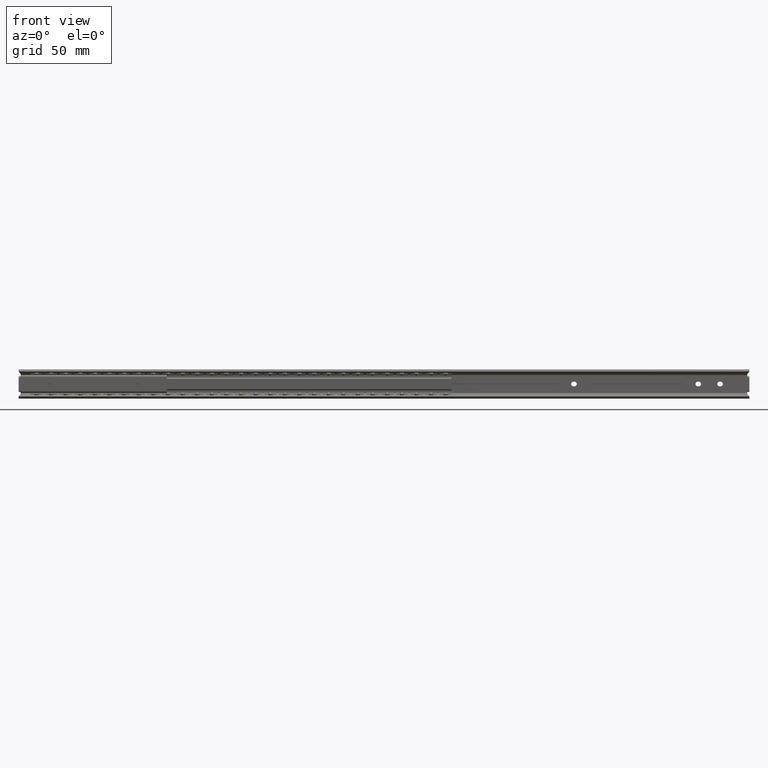
[diagram: clean part render]
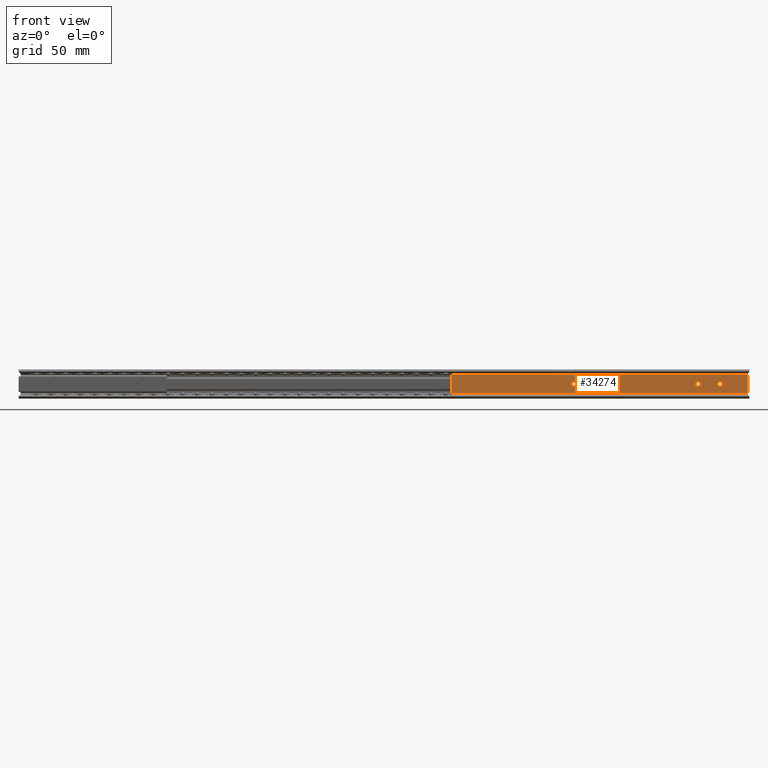
[diagram: same view with one face highlighted and labeled with its STEP entity id]
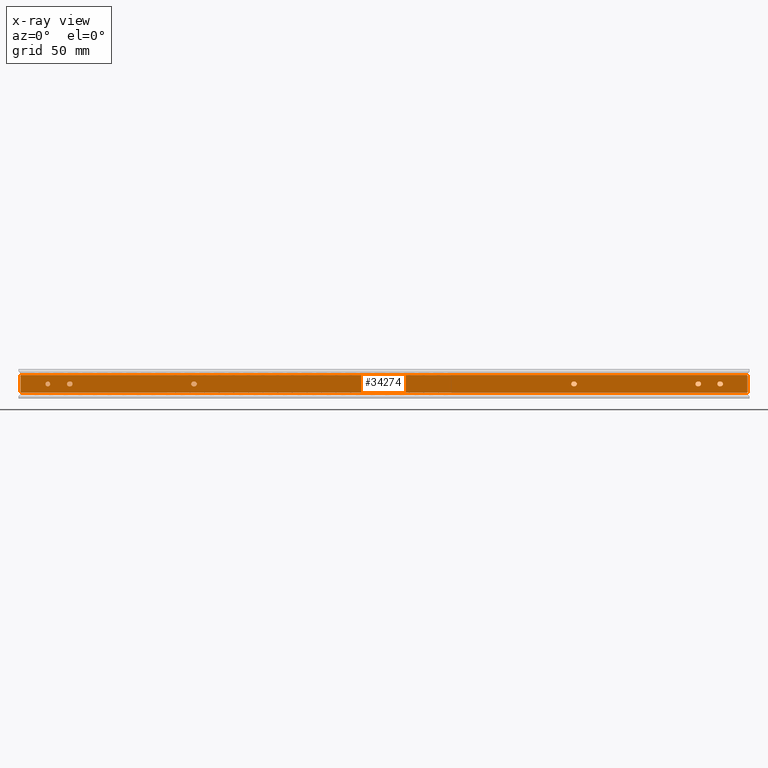
[diagram: x-ray of the same camera — body ghosted, the highlighted face saturated]
A machine part, front view. The second image highlights one B-rep face of the part: STEP entity #34274.
The next image is the same camera in x-ray: the body ghosted, the highlighted face saturated — about 0% of this face is hidden behind the body in this view.
In plain terms, the highlighted face is a freeform B-spline surface patch.
Its self-contained STEP definition (entity closure, byte-faithful):
#30622=CARTESIAN_POINT('',(21.588815240927872,-1.399999999999956,-0.188854786000551));
#30623=VERTEX_POINT('',#30622);
#30629=CARTESIAN_POINT('',(20.0,-1.399999999999956,1.600000000000000));
#30630=VERTEX_POINT('',#30629);
#30631=CARTESIAN_POINT('',(21.588815240927875,-1.399999999999957,-0.188854786000551));
#30632=CARTESIAN_POINT('',(21.600000000000005,-1.399999999999956,-0.094758602104324));
#30633=CARTESIAN_POINT('',(21.600000000000001,-1.399999999999956,0.0));
#30634=CARTESIAN_POINT('',(21.600000000000005,-1.399999999999956,1.600000000000000));
#30635=CARTESIAN_POINT('',(20.0,-1.399999999999956,1.600000000000000));
#30643=(BOUNDED_CURVE()B_SPLINE_CURVE(2,(#30631,#30632,#30633,#30634,#30635),.UNSPECIFIED.,.F.,.U.)B_SPLINE_CURVE_WITH_KNOTS((3,2,3),(0.229562471271280,0.250000000000000,0.500000000000000),.UNSPECIFIED.)CURVE()GEOMETRIC_REPRESENTATION_ITEM()RATIONAL_B_SPLINE_CURVE((0.956026749788840,0.976055945704211,1.0,0.707106781186548,1.0))REPRESENTATION_ITEM(''));
#30644=EDGE_CURVE('',#30623,#30630,#30643,.T.);
#30646=CARTESIAN_POINT('',(18.402984322537680,-1.399999999999956,0.097677663462970));
#30647=VERTEX_POINT('',#30646);
#30648=CARTESIAN_POINT('',(20.0,-1.399999999999956,1.600000000000000));
#30649=CARTESIAN_POINT('',(18.494870293342164,-1.399999999999955,1.600000000000000));
#30650=CARTESIAN_POINT('',(18.402984322537691,-1.399999999999957,0.097677663462970));
#30658=(BOUNDED_CURVE()B_SPLINE_CURVE(2,(#30648,#30649,#30650),.UNSPECIFIED.,.F.,.U.)B_SPLINE_CURVE_WITH_KNOTS((3,3),(0.500000000000000,0.739332962197196),.UNSPECIFIED.)CURVE()GEOMETRIC_REPRESENTATION_ITEM()RATIONAL_B_SPLINE_CURVE((1.0,0.719603993335619,0.976072041577247))REPRESENTATION_ITEM(''));
#30659=EDGE_CURVE('',#30630,#30647,#30658,.T.);
#30733=CARTESIAN_POINT('',(20.0,-1.399999999999956,-1.600000000000000));
#30734=VERTEX_POINT('',#30733);
#30735=CARTESIAN_POINT('',(18.402984322537680,-1.399999999999956,0.097677663462970));
#30736=CARTESIAN_POINT('',(18.399999999999999,-1.399999999999956,0.048884421485522));
#30737=CARTESIAN_POINT('',(18.399999999999999,-1.399999999999956,0.0));
#30738=CARTESIAN_POINT('',(18.399999999999991,-1.399999999999956,-1.600000000000000));
#30739=CARTESIAN_POINT('',(20.0,-1.399999999999956,-1.600000000000000));
#30747=(BOUNDED_CURVE()B_SPLINE_CURVE(2,(#30735,#30736,#30737,#30738,#30739),.UNSPECIFIED.,.F.,.U.)B_SPLINE_CURVE_WITH_KNOTS((3,2,3),(0.739332962197195,0.750000000000000,1.0),.UNSPECIFIED.)CURVE()GEOMETRIC_REPRESENTATION_ITEM()RATIONAL_B_SPLINE_CURVE((0.976072041577245,0.987502787850927,1.0,0.707106781186548,1.0))REPRESENTATION_ITEM(''));
#30748=EDGE_CURVE('',#30647,#30734,#30747,.T.);
#30750=CARTESIAN_POINT('',(20.0,-1.399999999999956,-1.600000000000000));
#30751=CARTESIAN_POINT('',(21.421079222517402,-1.399999999999956,-1.600000000000000));
#30752=CARTESIAN_POINT('',(21.588815240927875,-1.399999999999957,-0.188854786000551));
#30760=(BOUNDED_CURVE()B_SPLINE_CURVE(2,(#30750,#30751,#30752),.UNSPECIFIED.,.F.,.U.)B_SPLINE_CURVE_WITH_KNOTS((3,3),(0.0,0.229562471271280),.UNSPECIFIED.)CURVE()GEOMETRIC_REPRESENTATION_ITEM()RATIONAL_B_SPLINE_CURVE((1.0,0.731050835482336,0.956026749788840))REPRESENTATION_ITEM(''));
#30761=EDGE_CURVE('',#30734,#30623,#30760,.T.);
#30772=CARTESIAN_POINT('',(479.699999999999990,-1.399999999999920,-1.600000000000000));
#30773=VERTEX_POINT('',#30772);
#30774=CARTESIAN_POINT('',(480.300000000000010,-1.399999999999956,-1.600000000000000));
#30775=VERTEX_POINT('',#30774);
#30776=CARTESIAN_POINT('',(479.699999999999990,-1.399999999999920,-1.600000000000000));
#30777=CARTESIAN_POINT('',(480.300000000000010,-1.399999999999956,-1.600000000000000));
#30778=QUASI_UNIFORM_CURVE('',1,(#30776,#30777),.UNSPECIFIED.,.F.,.U.);
#30779=EDGE_CURVE('',#30773,#30775,#30778,.T.);
#30821=CARTESIAN_POINT('',(479.699999999999990,-1.399999999999956,1.599999999999795));
#30822=VERTEX_POINT('',#30821);
#30823=CARTESIAN_POINT('',(479.699999999999990,-1.399999999999956,1.600000000000025));
#30824=CARTESIAN_POINT('',(478.099999999999970,-1.399999999999956,1.600000000000026));
#30825=CARTESIAN_POINT('',(478.100000000000020,-1.399999999999956,0.0));
#30826=CARTESIAN_POINT('',(478.099999999999970,-1.399999999999956,-1.600000000000026));
#30827=CARTESIAN_POINT('',(479.699999999999990,-1.399999999999956,-1.600000000000025));
#30835=(BOUNDED_CURVE()B_SPLINE_CURVE(2,(#30823,#30824,#30825,#30826,#30827),.UNSPECIFIED.,.F.,.U.)B_SPLINE_CURVE_WITH_KNOTS((3,2,3),(0.0,0.500000000000000,1.0),.UNSPECIFIED.)CURVE()GEOMETRIC_REPRESENTATION_ITEM()RATIONAL_B_SPLINE_CURVE((1.0,0.707106781186547,1.0,0.707106781186547,1.0))REPRESENTATION_ITEM(''));
#30836=EDGE_CURVE('',#30822,#30773,#30835,.T.);
#30869=CARTESIAN_POINT('',(480.300000000000010,-1.399999999999956,1.599999999999795));
#30870=VERTEX_POINT('',#30869);
#30871=CARTESIAN_POINT('',(480.300000000000010,-1.399999999999956,1.599999999999795));
#30872=CARTESIAN_POINT('',(479.699999999999990,-1.399999999999956,1.599999999999795));
#30873=QUASI_UNIFORM_CURVE('',1,(#30871,#30872),.UNSPECIFIED.,.F.,.U.);
#30874=EDGE_CURVE('',#30870,#30822,#30873,.T.);
#30910=CARTESIAN_POINT('',(480.300000000000010,-1.399999999999956,-1.600000000000025));
#30911=CARTESIAN_POINT('',(481.899999999999920,-1.399999999999956,-1.600000000000026));
#30912=CARTESIAN_POINT('',(481.899999999999980,-1.399999999999956,0.0));
#30913=CARTESIAN_POINT('',(481.899999999999920,-1.399999999999956,1.600000000000026));
#30914=CARTESIAN_POINT('',(480.300000000000010,-1.399999999999956,1.600000000000025));
#30922=(BOUNDED_CURVE()B_SPLINE_CURVE(2,(#30910,#30911,#30912,#30913,#30914),.UNSPECIFIED.,.F.,.U.)B_SPLINE_CURVE_WITH_KNOTS((3,2,3),(0.0,0.500000000000000,1.0),.UNSPECIFIED.)CURVE()GEOMETRIC_REPRESENTATION_ITEM()RATIONAL_B_SPLINE_CURVE((1.0,0.707106781186547,1.0,0.707106781186547,1.0))REPRESENTATION_ITEM(''));
#30923=EDGE_CURVE('',#30775,#30870,#30922,.T.);
#30950=CARTESIAN_POINT('',(464.699999999999990,-1.399999999999920,-1.600000000000000));
#30951=VERTEX_POINT('',#30950);
#30952=CARTESIAN_POINT('',(465.300000000000010,-1.399999999999956,-1.600000000000000));
#30953=VERTEX_POINT('',#30952);
#30954=CARTESIAN_POINT('',(464.699999999999990,-1.399999999999920,-1.600000000000000));
#30955=CARTESIAN_POINT('',(465.300000000000010,-1.399999999999956,-1.600000000000000));
#30956=QUASI_UNIFORM_CURVE('',1,(#30954,#30955),.UNSPECIFIED.,.F.,.U.);
#30957=EDGE_CURVE('',#30951,#30953,#30956,.T.);
#30999=CARTESIAN_POINT('',(464.699999999999990,-1.399999999999956,1.599999999999795));
#31000=VERTEX_POINT('',#30999);
#31001=CARTESIAN_POINT('',(464.699999999999990,-1.399999999999956,1.600000000000025));
#31002=CARTESIAN_POINT('',(463.099999999999970,-1.399999999999956,1.600000000000026));
#31003=CARTESIAN_POINT('',(463.100000000000020,-1.399999999999956,0.0));
#31004=CARTESIAN_POINT('',(463.099999999999970,-1.399999999999956,-1.600000000000026));
#31005=CARTESIAN_POINT('',(464.699999999999990,-1.399999999999956,-1.600000000000025));
#31013=(BOUNDED_CURVE()B_SPLINE_CURVE(2,(#31001,#31002,#31003,#31004,#31005),.UNSPECIFIED.,.F.,.U.)B_SPLINE_CURVE_WITH_KNOTS((3,2,3),(0.0,0.500000000000000,1.0),.UNSPECIFIED.)CURVE()GEOMETRIC_REPRESENTATION_ITEM()RATIONAL_B_SPLINE_CURVE((1.0,0.707106781186547,1.0,0.707106781186547,1.0))REPRESENTATION_ITEM(''));
#31014=EDGE_CURVE('',#31000,#30951,#31013,.T.);
#31047=CARTESIAN_POINT('',(465.300000000000010,-1.399999999999956,1.599999999999795));
#31048=VERTEX_POINT('',#31047);
#31049=CARTESIAN_POINT('',(465.300000000000010,-1.399999999999956,1.599999999999795));
#31050=CARTESIAN_POINT('',(464.699999999999990,-1.399999999999956,1.599999999999795));
#31051=QUASI_UNIFORM_CURVE('',1,(#31049,#31050),.UNSPECIFIED.,.F.,.U.);
#31052=EDGE_CURVE('',#31048,#31000,#31051,.T.);
#31088=CARTESIAN_POINT('',(465.300000000000010,-1.399999999999956,-1.600000000000025));
#31089=CARTESIAN_POINT('',(466.899999999999980,-1.399999999999956,-1.600000000000026));
#31090=CARTESIAN_POINT('',(466.899999999999980,-1.399999999999956,0.0));
#31091=CARTESIAN_POINT('',(466.899999999999980,-1.399999999999956,1.600000000000026));
#31092=CARTESIAN_POINT('',(465.300000000000010,-1.399999999999956,1.600000000000025));
#31100=(BOUNDED_CURVE()B_SPLINE_CURVE(2,(#31088,#31089,#31090,#31091,#31092),.UNSPECIFIED.,.F.,.U.)B_SPLINE_CURVE_WITH_KNOTS((3,2,3),(0.0,0.500000000000000,1.0),.UNSPECIFIED.)CURVE()GEOMETRIC_REPRESENTATION_ITEM()RATIONAL_B_SPLINE_CURVE((1.0,0.707106781186547,1.0,0.707106781186547,1.0))REPRESENTATION_ITEM(''));
#31101=EDGE_CURVE('',#30953,#31048,#31100,.T.);
#31128=CARTESIAN_POINT('',(379.699999999999990,-1.399999999999920,-1.600000000000000));
#31129=VERTEX_POINT('',#31128);
#31130=CARTESIAN_POINT('',(380.300000000000010,-1.399999999999956,-1.600000000000000));
#31131=VERTEX_POINT('',#31130);
#31132=CARTESIAN_POINT('',(379.699999999999990,-1.399999999999920,-1.600000000000000));
#31133=CARTESIAN_POINT('',(380.300000000000010,-1.399999999999956,-1.600000000000000));
#31134=QUASI_UNIFORM_CURVE('',1,(#31132,#31133),.UNSPECIFIED.,.F.,.U.);
#31135=EDGE_CURVE('',#31129,#31131,#31134,.T.);
#31177=CARTESIAN_POINT('',(379.699999999999990,-1.399999999999956,1.599999999999795));
#31178=VERTEX_POINT('',#31177);
#31179=CARTESIAN_POINT('',(379.699999999999990,-1.399999999999956,1.600000000000025));
#31180=CARTESIAN_POINT('',(378.100000000000020,-1.399999999999956,1.600000000000026));
#31181=CARTESIAN_POINT('',(378.099999999999910,-1.399999999999956,0.0));
#31182=CARTESIAN_POINT('',(378.100000000000020,-1.399999999999956,-1.600000000000026));
#31183=CARTESIAN_POINT('',(379.699999999999990,-1.399999999999956,-1.600000000000025));
#31191=(BOUNDED_CURVE()B_SPLINE_CURVE(2,(#31179,#31180,#31181,#31182,#31183),.UNSPECIFIED.,.F.,.U.)B_SPLINE_CURVE_WITH_KNOTS((3,2,3),(0.0,0.500000000000000,1.0),.UNSPECIFIED.)CURVE()GEOMETRIC_REPRESENTATION_ITEM()RATIONAL_B_SPLINE_CURVE((1.0,0.707106781186547,1.0,0.707106781186547,1.0))REPRESENTATION_ITEM(''));
#31192=EDGE_CURVE('',#31178,#31129,#31191,.T.);
#31225=CARTESIAN_POINT('',(380.300000000000010,-1.399999999999956,1.599999999999795));
#31226=VERTEX_POINT('',#31225);
#31227=CARTESIAN_POINT('',(380.300000000000010,-1.399999999999956,1.599999999999795));
#31228=CARTESIAN_POINT('',(379.699999999999990,-1.399999999999956,1.599999999999795));
#31229=QUASI_UNIFORM_CURVE('',1,(#31227,#31228),.UNSPECIFIED.,.F.,.U.);
#31230=EDGE_CURVE('',#31226,#31178,#31229,.T.);
#31266=CARTESIAN_POINT('',(380.300000000000010,-1.399999999999956,-1.600000000000025));
#31267=CARTESIAN_POINT('',(381.900000000000150,-1.399999999999956,-1.600000000000026));
#31268=CARTESIAN_POINT('',(381.900000000000090,-1.399999999999956,0.0));
#31269=CARTESIAN_POINT('',(381.900000000000150,-1.399999999999956,1.600000000000026));
#31270=CARTESIAN_POINT('',(380.300000000000010,-1.399999999999956,1.600000000000025));
#31278=(BOUNDED_CURVE()B_SPLINE_CURVE(2,(#31266,#31267,#31268,#31269,#31270),.UNSPECIFIED.,.F.,.U.)B_SPLINE_CURVE_WITH_KNOTS((3,2,3),(0.0,0.500000000000000,1.0),.UNSPECIFIED.)CURVE()GEOMETRIC_REPRESENTATION_ITEM()RATIONAL_B_SPLINE_CURVE((1.0,0.707106781186547,1.0,0.707106781186547,1.0))REPRESENTATION_ITEM(''));
#31279=EDGE_CURVE('',#31131,#31226,#31278,.T.);
#31306=CARTESIAN_POINT('',(249.699999999999990,-1.399999999999920,-1.600000000000080));
#31307=VERTEX_POINT('',#31306);
#31308=CARTESIAN_POINT('',(250.300000000000010,-1.399999999999956,-1.600000000000080));
#31309=VERTEX_POINT('',#31308);
#31310=CARTESIAN_POINT('',(249.699999999999990,-1.399999999999920,-1.600000000000080));
#31311=CARTESIAN_POINT('',(250.300000000000010,-1.399999999999956,-1.600000000000080));
#31312=QUASI_UNIFORM_CURVE('',1,(#31310,#31311),.UNSPECIFIED.,.F.,.U.);
#31313=EDGE_CURVE('',#31307,#31309,#31312,.T.);
#31355=CARTESIAN_POINT('',(249.699999999999990,-1.399999999999956,1.600000000000025));
#31356=VERTEX_POINT('',#31355);
#31357=CARTESIAN_POINT('',(249.699999999999990,-1.399999999999956,1.600000000000000));
#31358=CARTESIAN_POINT('',(248.100000000000080,-1.399999999999956,1.600000000000000));
#31359=CARTESIAN_POINT('',(248.099999999999990,-1.399999999999956,0.0));
#31360=CARTESIAN_POINT('',(248.100000000000080,-1.399999999999956,-1.600000000000000));
#31361=CARTESIAN_POINT('',(249.699999999999990,-1.399999999999956,-1.600000000000000));
#31369=(BOUNDED_CURVE()B_SPLINE_CURVE(2,(#31357,#31358,#31359,#31360,#31361),.UNSPECIFIED.,.F.,.U.)B_SPLINE_CURVE_WITH_KNOTS((3,2,3),(0.0,0.500000000000000,1.0),.UNSPECIFIED.)CURVE()GEOMETRIC_REPRESENTATION_ITEM()RATIONAL_B_SPLINE_CURVE((1.0,0.707106781186548,1.0,0.707106781186548,1.0))REPRESENTATION_ITEM(''));
#31370=EDGE_CURVE('',#31356,#31307,#31369,.T.);
#31403=CARTESIAN_POINT('',(250.300000000000010,-1.399999999999956,1.600000000000025));
#31404=VERTEX_POINT('',#31403);
#31405=CARTESIAN_POINT('',(250.300000000000010,-1.399999999999956,1.600000000000025));
#31406=CARTESIAN_POINT('',(249.699999999999990,-1.399999999999956,1.600000000000025));
#31407=QUASI_UNIFORM_CURVE('',1,(#31405,#31406),.UNSPECIFIED.,.F.,.U.);
#31408=EDGE_CURVE('',#31404,#31356,#31407,.T.);
#31444=CARTESIAN_POINT('',(250.300000000000010,-1.399999999999956,-1.600000000000000));
#31445=CARTESIAN_POINT('',(251.900000000000090,-1.399999999999956,-1.600000000000000));
#31446=CARTESIAN_POINT('',(251.900000000000010,-1.399999999999956,0.0));
#31447=CARTESIAN_POINT('',(251.900000000000090,-1.399999999999956,1.600000000000000));
#31448=CARTESIAN_POINT('',(250.300000000000010,-1.399999999999956,1.600000000000000));
#31456=(BOUNDED_CURVE()B_SPLINE_CURVE(2,(#31444,#31445,#31446,#31447,#31448),.UNSPECIFIED.,.F.,.U.)B_SPLINE_CURVE_WITH_KNOTS((3,2,3),(0.0,0.500000000000000,1.0),.UNSPECIFIED.)CURVE()GEOMETRIC_REPRESENTATION_ITEM()RATIONAL_B_SPLINE_CURVE((1.0,0.707106781186548,1.0,0.707106781186548,1.0))REPRESENTATION_ITEM(''));
#31457=EDGE_CURVE('',#31309,#31404,#31456,.T.);
#31484=CARTESIAN_POINT('',(119.700000000000000,-1.399999999999920,-1.600000000000080));
#31485=VERTEX_POINT('',#31484);
#31486=CARTESIAN_POINT('',(120.300000000000000,-1.399999999999956,-1.600000000000080));
#31487=VERTEX_POINT('',#31486);
#31488=CARTESIAN_POINT('',(119.700000000000000,-1.399999999999920,-1.600000000000080));
#31489=CARTESIAN_POINT('',(120.300000000000000,-1.399999999999956,-1.600000000000080));
#31490=QUASI_UNIFORM_CURVE('',1,(#31488,#31489),.UNSPECIFIED.,.F.,.U.);
#31491=EDGE_CURVE('',#31485,#31487,#31490,.T.);
#31533=CARTESIAN_POINT('',(119.700000000000000,-1.399999999999956,1.600000000000025));
#31534=VERTEX_POINT('',#31533);
#31535=CARTESIAN_POINT('',(119.700000000000000,-1.399999999999956,1.600000000000000));
#31536=CARTESIAN_POINT('',(118.099999999999980,-1.399999999999956,1.600000000000000));
#31537=CARTESIAN_POINT('',(118.099999999999990,-1.399999999999956,0.0));
#31538=CARTESIAN_POINT('',(118.099999999999980,-1.399999999999956,-1.600000000000000));
#31539=CARTESIAN_POINT('',(119.700000000000000,-1.399999999999956,-1.600000000000000));
#31547=(BOUNDED_CURVE()B_SPLINE_CURVE(2,(#31535,#31536,#31537,#31538,#31539),.UNSPECIFIED.,.F.,.U.)B_SPLINE_CURVE_WITH_KNOTS((3,2,3),(0.0,0.500000000000000,1.0),.UNSPECIFIED.)CURVE()GEOMETRIC_REPRESENTATION_ITEM()RATIONAL_B_SPLINE_CURVE((1.0,0.707106781186548,1.0,0.707106781186548,1.0))REPRESENTATION_ITEM(''));
#31548=EDGE_CURVE('',#31534,#31485,#31547,.T.);
#31581=CARTESIAN_POINT('',(120.300000000000000,-1.399999999999956,1.600000000000025));
#31582=VERTEX_POINT('',#31581);
#31583=CARTESIAN_POINT('',(120.300000000000000,-1.399999999999956,1.600000000000025));
#31584=CARTESIAN_POINT('',(119.700000000000000,-1.399999999999956,1.600000000000025));
#31585=QUASI_UNIFORM_CURVE('',1,(#31583,#31584),.UNSPECIFIED.,.F.,.U.);
#31586=EDGE_CURVE('',#31582,#31534,#31585,.T.);
#31622=CARTESIAN_POINT('',(120.300000000000000,-1.399999999999956,-1.600000000000000));
#31623=CARTESIAN_POINT('',(121.900000000000010,-1.399999999999956,-1.600000000000000));
#31624=CARTESIAN_POINT('',(121.900000000000010,-1.399999999999956,0.0));
#31625=CARTESIAN_POINT('',(121.900000000000010,-1.399999999999956,1.600000000000000));
#31626=CARTESIAN_POINT('',(120.300000000000000,-1.399999999999956,1.600000000000000));
#31634=(BOUNDED_CURVE()B_SPLINE_CURVE(2,(#31622,#31623,#31624,#31625,#31626),.UNSPECIFIED.,.F.,.U.)B_SPLINE_CURVE_WITH_KNOTS((3,2,3),(0.0,0.500000000000000,1.0),.UNSPECIFIED.)CURVE()GEOMETRIC_REPRESENTATION_ITEM()RATIONAL_B_SPLINE_CURVE((1.0,0.707106781186548,1.0,0.707106781186548,1.0))REPRESENTATION_ITEM(''));
#31635=EDGE_CURVE('',#31487,#31582,#31634,.T.);
#31675=CARTESIAN_POINT('',(35.299999999999997,-1.399999999999956,-1.600000000000000));
#31676=VERTEX_POINT('',#31675);
#31677=CARTESIAN_POINT('',(35.299999999999997,-1.399999999999956,1.600000000000025));
#31678=VERTEX_POINT('',#31677);
#31679=CARTESIAN_POINT('',(35.299999999999997,-1.399999999999956,-1.600000000000000));
#31680=CARTESIAN_POINT('',(36.900000000000006,-1.399999999999956,-1.600000000000000));
#31681=CARTESIAN_POINT('',(36.899999999999999,-1.399999999999956,0.0));
#31682=CARTESIAN_POINT('',(36.900000000000006,-1.399999999999956,1.600000000000000));
#31683=CARTESIAN_POINT('',(35.299999999999997,-1.399999999999956,1.600000000000000));
#31691=(BOUNDED_CURVE()B_SPLINE_CURVE(2,(#31679,#31680,#31681,#31682,#31683),.UNSPECIFIED.,.F.,.U.)B_SPLINE_CURVE_WITH_KNOTS((3,2,3),(0.0,0.500000000000000,1.0),.UNSPECIFIED.)CURVE()GEOMETRIC_REPRESENTATION_ITEM()RATIONAL_B_SPLINE_CURVE((1.0,0.707106781186548,1.0,0.707106781186548,1.0))REPRESENTATION_ITEM(''));
#31692=EDGE_CURVE('',#31676,#31678,#31691,.T.);
#31733=CARTESIAN_POINT('',(34.700000000000003,-1.399999999999956,1.600000000000000));
#31734=VERTEX_POINT('',#31733);
#31746=CARTESIAN_POINT('',(34.700000000000003,-1.399999999999956,1.600000000000000));
#31747=CARTESIAN_POINT('',(35.299999999999997,-1.399999999999956,1.600000000000025));
#31748=QUASI_UNIFORM_CURVE('',1,(#31746,#31747),.UNSPECIFIED.,.F.,.U.);
#31749=EDGE_CURVE('',#31734,#31678,#31748,.T.);
#31772=CARTESIAN_POINT('',(34.700000000000003,-1.399999999999956,-1.600000000000000));
#31773=VERTEX_POINT('',#31772);
#31774=CARTESIAN_POINT('',(34.700000000000003,-1.399999999999956,1.600000000000000));
#31775=CARTESIAN_POINT('',(33.100000000000009,-1.399999999999956,1.600000000000000));
#31776=CARTESIAN_POINT('',(33.100000000000001,-1.399999999999956,0.0));
#31777=CARTESIAN_POINT('',(33.100000000000009,-1.399999999999956,-1.600000000000000));
#31778=CARTESIAN_POINT('',(34.700000000000003,-1.399999999999956,-1.600000000000000));
#31786=(BOUNDED_CURVE()B_SPLINE_CURVE(2,(#31774,#31775,#31776,#31777,#31778),.UNSPECIFIED.,.F.,.U.)B_SPLINE_CURVE_WITH_KNOTS((3,2,3),(0.0,0.500000000000000,1.0),.UNSPECIFIED.)CURVE()GEOMETRIC_REPRESENTATION_ITEM()RATIONAL_B_SPLINE_CURVE((1.0,0.707106781186548,1.0,0.707106781186548,1.0))REPRESENTATION_ITEM(''));
#31787=EDGE_CURVE('',#31734,#31773,#31786,.T.);
#31827=CARTESIAN_POINT('',(35.299999999999997,-1.399999999999956,-1.600000000000000));
#31828=CARTESIAN_POINT('',(34.700000000000003,-1.399999999999956,-1.600000000000000));
#31829=QUASI_UNIFORM_CURVE('',1,(#31827,#31828),.UNSPECIFIED.,.F.,.U.);
#31830=EDGE_CURVE('',#31676,#31773,#31829,.T.);
#31857=CARTESIAN_POINT('',(498.600000000000020,-1.399999999999920,5.299999999999900));
#31858=VERTEX_POINT('',#31857);
#31864=CARTESIAN_POINT('',(498.600000000000020,-1.399999999999920,-5.300000000000000));
#31865=VERTEX_POINT('',#31864);
#31866=CARTESIAN_POINT('',(498.600000000000020,-1.399999999999920,5.299999999999900));
#31867=CARTESIAN_POINT('',(498.600000000000020,-1.399999999999920,-5.300000000000000));
#31868=QUASI_UNIFORM_CURVE('',1,(#31866,#31867),.UNSPECIFIED.,.F.,.U.);
#31869=EDGE_CURVE('',#31858,#31865,#31868,.T.);
#32034=CARTESIAN_POINT('',(499.400000242034990,-1.399999999999920,5.299999999999900));
#32035=VERTEX_POINT('',#32034);
#32041=CARTESIAN_POINT('',(498.600000000000020,-1.399999999999920,5.299999999999900));
#32042=CARTESIAN_POINT('',(499.400000242034990,-1.399999999999920,5.299999999999900));
#32043=QUASI_UNIFORM_CURVE('',1,(#32041,#32042),.UNSPECIFIED.,.F.,.U.);
#32044=EDGE_CURVE('',#31858,#32035,#32043,.T.);
#32255=CARTESIAN_POINT('',(498.424053704473010,-1.399999999999920,6.081989000000000));
#32256=VERTEX_POINT('',#32255);
#32270=CARTESIAN_POINT('',(498.424053704473580,-1.399999999999956,6.081989000000137));
#32271=CARTESIAN_POINT('',(498.598737887947610,-1.399999999999956,5.299999999999870));
#32272=CARTESIAN_POINT('',(499.400000242034990,-1.399999999999956,5.299999999999870));
#32280=(BOUNDED_CURVE()B_SPLINE_CURVE(2,(#32270,#32271,#32272),.UNSPECIFIED.,.F.,.U.)CURVE()GEOMETRIC_REPRESENTATION_ITEM()QUASI_UNIFORM_CURVE()RATIONAL_B_SPLINE_CURVE((1.0,0.780388115026493,1.0))REPRESENTATION_ITEM(''));
#32281=EDGE_CURVE('',#32256,#32035,#32280,.T.);
#32570=CARTESIAN_POINT('',(499.400000242034990,-1.399999999999956,-5.299999999999900));
#32571=VERTEX_POINT('',#32570);
#32599=CARTESIAN_POINT('',(498.600000000000020,-1.399999999999920,-5.300000000000000));
#32600=CARTESIAN_POINT('',(499.400000242034990,-1.399999999999956,-5.299999999999900));
#32601=QUASI_UNIFORM_CURVE('',1,(#32599,#32600),.UNSPECIFIED.,.F.,.U.);
#32602=EDGE_CURVE('',#31865,#32571,#32601,.T.);
#32654=CARTESIAN_POINT('',(498.424053704473010,-1.399999999999920,-6.081989000000000));
#32655=VERTEX_POINT('',#32654);
#32656=CARTESIAN_POINT('',(499.400000242034990,-1.399999999999956,-5.299999999999873));
#32657=CARTESIAN_POINT('',(498.598737887947720,-1.399999999999956,-5.299999999999873));
#32658=CARTESIAN_POINT('',(498.424053704473580,-1.399999999999956,-6.081989000000137));
#32666=(BOUNDED_CURVE()B_SPLINE_CURVE(2,(#32656,#32657,#32658),.UNSPECIFIED.,.F.,.U.)CURVE()GEOMETRIC_REPRESENTATION_ITEM()QUASI_UNIFORM_CURVE()RATIONAL_B_SPLINE_CURVE((1.0,0.780388115026492,1.0))REPRESENTATION_ITEM(''));
#32667=EDGE_CURVE('',#32571,#32655,#32666,.T.);
#32851=CARTESIAN_POINT('',(1.399999999999956,-1.399999999999920,-5.300000000000000));
#32852=VERTEX_POINT('',#32851);
#32858=CARTESIAN_POINT('',(1.399999999999956,-1.399999999999920,5.299999999999900));
#32859=VERTEX_POINT('',#32858);
#32860=CARTESIAN_POINT('',(1.399999999999956,-1.399999999999920,5.299999999999900));
#32861=CARTESIAN_POINT('',(1.399999999999956,-1.399999999999920,-5.300000000000000));
#32862=QUASI_UNIFORM_CURVE('',1,(#32860,#32861),.UNSPECIFIED.,.F.,.U.);
#32863=EDGE_CURVE('',#32859,#32852,#32862,.T.);
#32984=CARTESIAN_POINT('',(0.599999757965303,-1.399999999999956,5.299999999999870));
#32985=VERTEX_POINT('',#32984);
#32999=CARTESIAN_POINT('',(1.399999999999956,-1.399999999999920,5.299999999999900));
#33000=CARTESIAN_POINT('',(0.599999757965303,-1.399999999999956,5.299999999999870));
#33001=QUASI_UNIFORM_CURVE('',1,(#32999,#33000),.UNSPECIFIED.,.F.,.U.);
#33002=EDGE_CURVE('',#32859,#32985,#33001,.T.);
#33213=CARTESIAN_POINT('',(1.575946295526735,-1.399999999999920,6.081989000000000));
#33214=VERTEX_POINT('',#33213);
#33215=CARTESIAN_POINT('',(0.599999757965303,-1.399999999999956,5.299999999999870));
#33216=CARTESIAN_POINT('',(1.401262112052452,-1.399999999999957,5.299999999999871));
#33217=CARTESIAN_POINT('',(1.575946295526735,-1.399999999999920,6.081989000000000));
#33225=(BOUNDED_CURVE()B_SPLINE_CURVE(2,(#33215,#33216,#33217),.UNSPECIFIED.,.F.,.U.)CURVE()GEOMETRIC_REPRESENTATION_ITEM()QUASI_UNIFORM_CURVE()RATIONAL_B_SPLINE_CURVE((1.0,0.780388115026535,1.0))REPRESENTATION_ITEM(''));
#33226=EDGE_CURVE('',#32985,#33214,#33225,.T.);
#33414=CARTESIAN_POINT('',(0.599999757965304,-1.399999999999956,-5.299999999999900));
#33415=VERTEX_POINT('',#33414);
#33472=CARTESIAN_POINT('',(1.575946295526720,-1.399999999999956,-6.081989000000000));
#33473=VERTEX_POINT('',#33472);
#33487=CARTESIAN_POINT('',(1.575946295526719,-1.399999999999956,-6.081989000000000));
#33488=CARTESIAN_POINT('',(1.401262112052449,-1.399999999999956,-5.299999999999873));
#33489=CARTESIAN_POINT('',(0.599999757965304,-1.399999999999956,-5.299999999999900));
#33497=(BOUNDED_CURVE()B_SPLINE_CURVE(2,(#33487,#33488,#33489),.UNSPECIFIED.,.F.,.U.)CURVE()GEOMETRIC_REPRESENTATION_ITEM()QUASI_UNIFORM_CURVE()RATIONAL_B_SPLINE_CURVE((1.0,0.780388115026536,1.0))REPRESENTATION_ITEM(''));
#33498=EDGE_CURVE('',#33473,#33415,#33497,.T.);
#33515=CARTESIAN_POINT('',(1.399999999999956,-1.399999999999920,-5.300000000000000));
#33516=CARTESIAN_POINT('',(0.599999757965304,-1.399999999999956,-5.299999999999900));
#33517=QUASI_UNIFORM_CURVE('',1,(#33515,#33516),.UNSPECIFIED.,.F.,.U.);
#33518=EDGE_CURVE('',#32852,#33415,#33517,.T.);
#33657=CARTESIAN_POINT('',(498.424053704473010,-1.399999999999920,6.081989000000000));
#33658=CARTESIAN_POINT('',(1.575946295526735,-1.399999999999920,6.081989000000000));
#33659=QUASI_UNIFORM_CURVE('',1,(#33657,#33658),.UNSPECIFIED.,.F.,.U.);
#33660=EDGE_CURVE('',#32256,#33214,#33659,.T.);
#33680=CARTESIAN_POINT('',(498.424053704473010,-1.399999999999920,-6.081989000000000));
#33681=CARTESIAN_POINT('',(1.575946295526720,-1.399999999999956,-6.081989000000000));
#33682=QUASI_UNIFORM_CURVE('',1,(#33680,#33681),.UNSPECIFIED.,.F.,.U.);
#33683=EDGE_CURVE('',#32655,#33473,#33682,.T.);
#34213=CARTESIAN_POINT('',(-24.315057517378829,-1.399999999999920,6.689579519878856));
#34214=CARTESIAN_POINT('',(-24.315057517378829,-1.399999999999920,-6.689579084861103));
#34215=CARTESIAN_POINT('',(524.315035219281530,-1.399999999999920,6.689579519878856));
#34216=CARTESIAN_POINT('',(524.315035219281530,-1.399999999999920,-6.689579084861103));
#34217=B_SPLINE_SURFACE_WITH_KNOTS('',1,1,((#34213,#34215),(#34214,#34216)),.UNSPECIFIED.,.F.,.F.,.U.,(2,2),(2,2),(0.0,13.379158604739960),(0.0,548.630092736660340),.UNSPECIFIED.);
#34218=ORIENTED_EDGE('',*,*,#32602,.F.);
#34219=ORIENTED_EDGE('',*,*,#31869,.F.);
#34220=ORIENTED_EDGE('',*,*,#32044,.T.);
#34221=ORIENTED_EDGE('',*,*,#32281,.F.);
#34222=ORIENTED_EDGE('',*,*,#33660,.T.);
#34223=ORIENTED_EDGE('',*,*,#33226,.F.);
#34224=ORIENTED_EDGE('',*,*,#33002,.F.);
#34225=ORIENTED_EDGE('',*,*,#32863,.T.);
#34226=ORIENTED_EDGE('',*,*,#33518,.T.);
#34227=ORIENTED_EDGE('',*,*,#33498,.F.);
#34228=ORIENTED_EDGE('',*,*,#33683,.F.);
#34229=ORIENTED_EDGE('',*,*,#32667,.F.);
#34230=EDGE_LOOP('',(#34218,#34219,#34220,#34221,#34222,#34223,#34224,#34225,#34226,#34227,#34228,#34229));
#34231=FACE_OUTER_BOUND('',#34230,.T.);
#34232=ORIENTED_EDGE('',*,*,#31101,.F.);
#34233=ORIENTED_EDGE('',*,*,#30957,.F.);
#34234=ORIENTED_EDGE('',*,*,#31014,.F.);
#34235=ORIENTED_EDGE('',*,*,#31052,.F.);
#34236=EDGE_LOOP('',(#34232,#34233,#34234,#34235));
#34237=FACE_BOUND('',#34236,.T.);
#34238=ORIENTED_EDGE('',*,*,#31279,.F.);
#34239=ORIENTED_EDGE('',*,*,#31135,.F.);
#34240=ORIENTED_EDGE('',*,*,#31192,.F.);
#34241=ORIENTED_EDGE('',*,*,#31230,.F.);
#34242=EDGE_LOOP('',(#34238,#34239,#34240,#34241));
#34243=FACE_BOUND('',#34242,.T.);
#34244=ORIENTED_EDGE('',*,*,#31457,.F.);
#34245=ORIENTED_EDGE('',*,*,#31313,.F.);
#34246=ORIENTED_EDGE('',*,*,#31370,.F.);
#34247=ORIENTED_EDGE('',*,*,#31408,.F.);
#34248=EDGE_LOOP('',(#34244,#34245,#34246,#34247));
#34249=FACE_BOUND('',#34248,.T.);
#34250=ORIENTED_EDGE('',*,*,#31635,.F.);
#34251=ORIENTED_EDGE('',*,*,#31491,.F.);
#34252=ORIENTED_EDGE('',*,*,#31548,.F.);
#34253=ORIENTED_EDGE('',*,*,#31586,.F.);
#34254=EDGE_LOOP('',(#34250,#34251,#34252,#34253));
#34255=FACE_BOUND('',#34254,.T.);
#34256=ORIENTED_EDGE('',*,*,#30923,.F.);
#34257=ORIENTED_EDGE('',*,*,#30779,.F.);
#34258=ORIENTED_EDGE('',*,*,#30836,.F.);
#34259=ORIENTED_EDGE('',*,*,#30874,.F.);
#34260=EDGE_LOOP('',(#34256,#34257,#34258,#34259));
#34261=FACE_BOUND('',#34260,.T.);
#34262=ORIENTED_EDGE('',*,*,#31692,.F.);
#34263=ORIENTED_EDGE('',*,*,#31830,.T.);
#34264=ORIENTED_EDGE('',*,*,#31787,.F.);
#34265=ORIENTED_EDGE('',*,*,#31749,.T.);
#34266=EDGE_LOOP('',(#34262,#34263,#34264,#34265));
#34267=FACE_BOUND('',#34266,.T.);
#34268=ORIENTED_EDGE('',*,*,#30659,.F.);
#34269=ORIENTED_EDGE('',*,*,#30644,.F.);
#34270=ORIENTED_EDGE('',*,*,#30761,.F.);
#34271=ORIENTED_EDGE('',*,*,#30748,.F.);
#34272=EDGE_LOOP('',(#34268,#34269,#34270,#34271));
#34273=FACE_BOUND('',#34272,.T.);
#34274=ADVANCED_FACE('',(#34231,#34237,#34243,#34249,#34255,#34261,#34267,#34273),#34217,.T.);